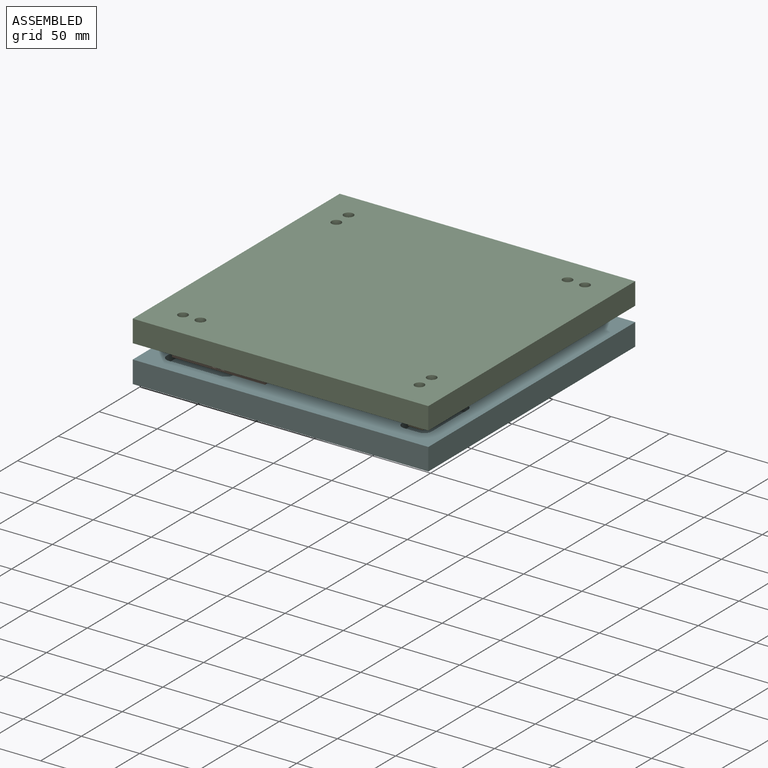
[diagram: assembled view]
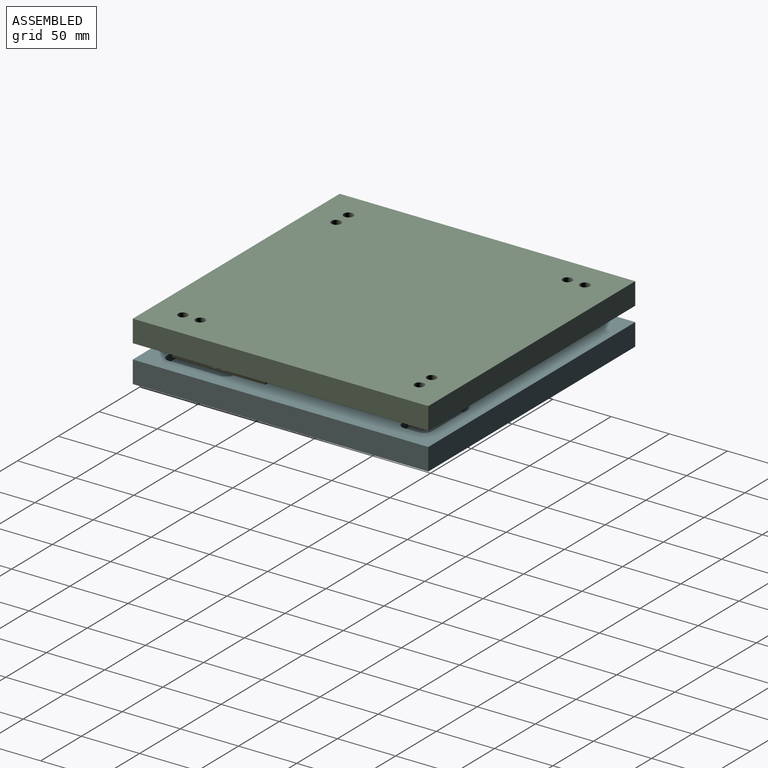
[diagram: assembled view, second angle]
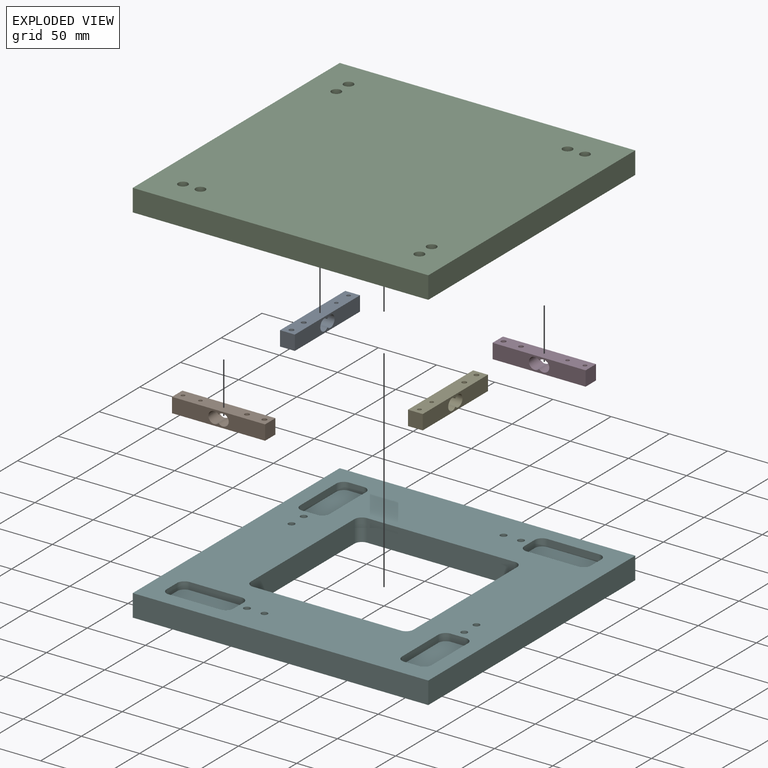
[diagram: exploded view]
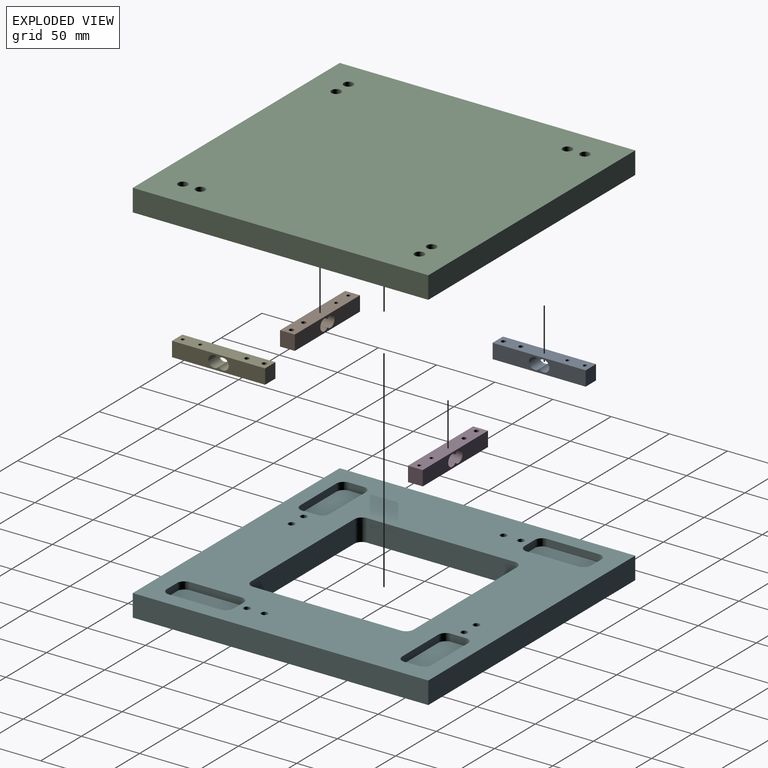
[diagram: exploded view, second angle]
ASSEMBLY  parts=6 mates=5
PART A: 12 faces, bbox 80x12.7x12.7 mm
  f0: plane 80x12.7mm, normal (0,-1,0), area 870.3mm2, adj f1,f2,f4,f5,f6,f11
  f1: cylinder r=5mm len=12.7mm, axis (0,-1,0), area 307.2mm2, adj f0,f3,f11
  f2: plane 12.7x12.7mm, normal (1,0,0), area 161.3mm2, adj f0,f3,f5,f6
  f3: plane 80x12.7mm, normal (0,1,0), area 870.3mm2, adj f1,f2,f4,f5,f6,f11
  f4: plane 12.7x12.7mm, normal (-1,0,0), area 161.3mm2, adj f0,f3,f5,f6
  f5: plane 80x12.7mm, normal (0,0,1), area 973.5mm2, adj f0,f2,f3,f4,f7,f8,f9,f10
  f6: plane 80x12.7mm, normal (0,0,-1), area 973.5mm2, adj f0,f2,f3,f4,f7,f8,f9,f10
  f7: cylinder r=1.6mm len=12.7mm, axis (0,0,1), area 127.7mm2, adj f5,f6
  f8: cylinder r=1.6mm len=12.7mm, axis (0,0,1), area 127.7mm2, adj f5,f6
  f9: cylinder r=2.05mm len=12.7mm, axis (0,0,1), area 163.6mm2, adj f5,f6
  f10: cylinder r=2.05mm len=12.7mm, axis (0,0,1), area 163.6mm2, adj f5,f6
  f11: cylinder r=5mm len=12.7mm, axis (0,-1,0), area 307.2mm2, adj f0,f1,f3
PART B: same geometry as A
PART C: 66 faces, bbox 254x254x19.1 mm
  f0: plane 254x254mm, normal (0,0,-1), area 58726.4mm2, adj f1,f2,f3,f4,f6,f9,f12,f13
  f1: plane 254x19.05mm, normal (-1,0,0), area 4838.7mm2, adj f0,f2,f4,f5
  f2: plane 254x19.05mm, normal (0,-1,0), area 4838.7mm2, adj f0,f1,f3,f5
  f3: plane 254x19.05mm, normal (1,0,0), area 4838.7mm2, adj f0,f2,f4,f5
  f4: plane 254x19.05mm, normal (0,1,0), area 4838.7mm2, adj f0,f1,f3,f5
  f5: plane 254x254mm, normal (0,0,1), area 64088.4mm2, adj f1,f2,f3,f4,f8,f11,f23,f26
  f6: cylinder r=2.2mm len=15.05mm, axis (0,0,1), area 208mm2, adj f0,f7
  f7: plane 8.25x8.25mm, normal (0,0,1), area 38.3mm2, adj f6,f8
  f8: cylinder r=4.12mm len=8.25mm, axis (0,0,1), area 103.7mm2, adj f5,f7
  f9: cylinder r=2.2mm len=15.05mm, axis (0,0,1), area 208mm2, adj f0,f10
  f10: plane 8.25x8.25mm, normal (0,0,1), area 38.3mm2, adj f9,f11
  f11: cylinder r=4.12mm len=8.25mm, axis (0,0,1), area 103.7mm2, adj f5,f10
  f12: plane 44.45x6.35mm, normal (0,1,0), area 282.3mm2, adj f0,f13,f19,f20
  f13: cylinder r=6.35mm len=6.35mm, axis (0,0,-1), area 63.3mm2, adj f0,f12,f14,f20
  f14: plane 12.7x6.35mm, normal (1,0,0), area 80.6mm2, adj f0,f13,f15,f20
  f15: cylinder r=6.35mm len=6.35mm, axis (0,0,-1), area 63.3mm2, adj f0,f14,f16,f20
  f16: plane 44.45x6.35mm, normal (0,-1,0), area 282.3mm2, adj f0,f15,f17,f20
  f17: cylinder r=6.35mm len=6.35mm, axis (0,0,-1), area 63.3mm2, adj f0,f16,f18,f20
  f18: plane 12.7x6.35mm, normal (-1,0,0), area 80.6mm2, adj f0,f17,f19,f20
  f19: cylinder r=6.35mm len=6.35mm, axis (0,0,-1), area 63.3mm2, adj f0,f12,f18,f20
  f20: plane 57.15x25.4mm, normal (0,0,-1), area 1417mm2, adj f12,f13,f14,f15,f16,f17,f18,f19
  f21: cylinder r=2.2mm len=15.05mm, axis (0,0,1), area 208mm2, adj f0,f22
  f22: plane 8.25x8.25mm, normal (0,0,1), area 38.3mm2, adj f21,f23
  f23: cylinder r=4.12mm len=8.25mm, axis (0,0,1), area 103.7mm2, adj f5,f22
  f24: cylinder r=2.2mm len=15.05mm, axis (0,0,1), area 208mm2, adj f0,f25
  f25: plane 8.25x8.25mm, normal (0,0,1), area 38.3mm2, adj f24,f26
  f26: cylinder r=4.12mm len=8.25mm, axis (0,0,1), area 103.7mm2, adj f5,f25
  f27: plane 44.45x6.35mm, normal (1,0,0), area 282.3mm2, adj f0,f28,f34,f35
  f28: cylinder r=6.35mm len=6.35mm, axis (0,0,-1), area 63.3mm2, adj f0,f27,f29,f35
  f29: plane 12.7x6.35mm, normal (0,-1,0), area 80.6mm2, adj f0,f28,f30,f35
  f30: cylinder r=6.35mm len=6.35mm, axis (0,0,-1), area 63.3mm2, adj f0,f29,f31,f35
  f31: plane 44.45x6.35mm, normal (-1,0,0), area 282.3mm2, adj f0,f30,f32,f35
  f32: cylinder r=6.35mm len=6.35mm, axis (0,0,-1), area 63.3mm2, adj f0,f31,f33,f35
  f33: plane 12.7x6.35mm, normal (0,1,0), area 80.6mm2, adj f0,f32,f34,f35
  f34: cylinder r=6.35mm len=6.35mm, axis (0,0,-1), area 63.3mm2, adj f0,f27,f33,f35
  f35: plane 57.15x25.4mm, normal (0,0,-1), area 1417mm2, adj f27,f28,f29,f30,f31,f32,f33,f34
  f36: cylinder r=2.2mm len=15.05mm, axis (0,0,1), area 208mm2, adj f0,f37
  f37: plane 8.25x8.25mm, normal (0,0,1), area 38.3mm2, adj f36,f38
  f38: cylinder r=4.12mm len=8.25mm, axis (0,0,1), area 103.7mm2, adj f5,f37
  f39: cylinder r=2.2mm len=15.05mm, axis (0,0,1), area 208mm2, adj f0,f40
  f40: plane 8.25x8.25mm, normal (0,0,1), area 38.3mm2, adj f39,f41
  f41: cylinder r=4.12mm len=8.25mm, axis (0,0,1), area 103.7mm2, adj f5,f40
  f42: plane 44.45x6.35mm, normal (0,-1,0), area 282.3mm2, adj f0,f43,f49,f50
  f43: cylinder r=6.35mm len=6.35mm, axis (0,0,-1), area 63.3mm2, adj f0,f42,f44,f50
  f44: plane 12.7x6.35mm, normal (-1,0,0), area 80.6mm2, adj f0,f43,f45,f50
  f45: cylinder r=6.35mm len=6.35mm, axis (0,0,-1), area 63.3mm2, adj f0,f44,f46,f50
  f46: plane 44.45x6.35mm, normal (0,1,0), area 282.3mm2, adj f0,f45,f47,f50
  f47: cylinder r=6.35mm len=6.35mm, axis (0,0,-1), area 63.3mm2, adj f0,f46,f48,f50
  f48: plane 12.7x6.35mm, normal (1,0,0), area 80.6mm2, adj f0,f47,f49,f50
  f49: cylinder r=6.35mm len=6.35mm, axis (0,0,-1), area 63.3mm2, adj f0,f42,f48,f50
  f50: plane 57.15x25.4mm, normal (0,0,-1), area 1417mm2, adj f42,f43,f44,f45,f46,f47,f48,f49
  f51: cylinder r=2.2mm len=15.05mm, axis (0,0,1), area 208mm2, adj f0,f52
  f52: plane 8.25x8.25mm, normal (0,0,1), area 38.3mm2, adj f51,f53
  f53: cylinder r=4.12mm len=8.25mm, axis (0,0,1), area 103.7mm2, adj f5,f52
  f54: cylinder r=2.2mm len=15.05mm, axis (0,0,1), area 208mm2, adj f0,f55
  f55: plane 8.25x8.25mm, normal (0,0,1), area 38.3mm2, adj f54,f56
  f56: cylinder r=4.12mm len=8.25mm, axis (0,0,1), area 103.7mm2, adj f5,f55
  f57: plane 44.45x6.35mm, normal (-1,0,0), area 282.3mm2, adj f0,f58,f64,f65
  f58: cylinder r=6.35mm len=6.35mm, axis (0,0,-1), area 63.3mm2, adj f0,f57,f59,f65
  f59: plane 12.7x6.35mm, normal (0,1,0), area 80.6mm2, adj f0,f58,f60,f65
  f60: cylinder r=6.35mm len=6.35mm, axis (0,0,-1), area 63.3mm2, adj f0,f59,f61,f65
  f61: plane 44.45x6.35mm, normal (1,0,0), area 282.3mm2, adj f0,f60,f62,f65
  f62: cylinder r=6.35mm len=6.35mm, axis (0,0,-1), area 63.3mm2, adj f0,f61,f63,f65
  f63: plane 12.7x6.35mm, normal (0,-1,0), area 80.6mm2, adj f0,f62,f64,f65
  f64: cylinder r=6.35mm len=6.35mm, axis (0,0,-1), area 63.3mm2, adj f0,f57,f63,f65
  f65: plane 57.15x25.4mm, normal (0,0,-1), area 1417mm2, adj f57,f58,f59,f60,f61,f62,f63,f64
PART D: same geometry as A
PART E: same geometry as A
PART F: 74 faces, bbox 254x254x19.1 mm
  f0: plane 254x254mm, normal (0,0,-1), area 39176.5mm2, adj f2,f3,f4,f5,f6,f9,f12,f13
  f1: plane 254x254mm, normal (0,0,1), area 44437.2mm2, adj f2,f3,f4,f5,f8,f11,f23,f26
  f2: plane 254x19.05mm, normal (-1,0,0), area 4838.7mm2, adj f0,f1,f3,f5
  f3: plane 254x19.05mm, normal (0,-1,0), area 4838.7mm2, adj f0,f1,f2,f4
  f4: plane 254x19.05mm, normal (1,0,0), area 4838.7mm2, adj f0,f1,f3,f5
  f5: plane 254x19.05mm, normal (0,1,0), area 4838.7mm2, adj f0,f1,f2,f4
  f6: cylinder r=2.75mm len=14.05mm, axis (0,0,1), area 242.8mm2, adj f0,f7
  f7: plane 9.75x9.75mm, normal (0,0,1), area 50.9mm2, adj f6,f8
  f8: cylinder r=4.88mm len=9.75mm, axis (0,0,1), area 153.2mm2, adj f1,f7
  f9: cylinder r=2.75mm len=14.05mm, axis (0,0,1), area 242.8mm2, adj f0,f10
  f10: plane 9.75x9.75mm, normal (0,0,1), area 50.9mm2, adj f9,f11
  f11: cylinder r=4.88mm len=9.75mm, axis (0,0,1), area 153.2mm2, adj f1,f10
  f12: plane 44.45x6.35mm, normal (0,1,0), area 282.3mm2, adj f0,f13,f19,f20
  f13: cylinder r=6.35mm len=6.35mm, axis (0,0,-1), area 63.3mm2, adj f0,f12,f14,f20
  f14: plane 12.7x6.35mm, normal (1,0,0), area 80.6mm2, adj f0,f13,f15,f20
  f15: cylinder r=6.35mm len=6.35mm, axis (0,0,-1), area 63.3mm2, adj f0,f14,f16,f20
  f16: plane 44.45x6.35mm, normal (0,-1,0), area 282.3mm2, adj f0,f15,f17,f20
  f17: cylinder r=6.35mm len=6.35mm, axis (0,0,-1), area 63.3mm2, adj f0,f16,f18,f20
  f18: plane 12.7x6.35mm, normal (-1,0,0), area 80.6mm2, adj f0,f17,f19,f20
  f19: cylinder r=6.35mm len=6.35mm, axis (0,0,-1), area 63.3mm2, adj f0,f12,f18,f20
  f20: plane 57.15x25.4mm, normal (0,0,-1), area 1417mm2, adj f12,f13,f14,f15,f16,f17,f18,f19
  f21: cylinder r=2.75mm len=14.05mm, axis (0,0,1), area 242.8mm2, adj f0,f22
  f22: plane 9.75x9.75mm, normal (0,0,1), area 50.9mm2, adj f21,f23
  f23: cylinder r=4.88mm len=9.75mm, axis (0,0,1), area 153.2mm2, adj f1,f22
  f24: cylinder r=2.75mm len=14.05mm, axis (0,0,1), area 242.8mm2, adj f0,f25
  f25: plane 9.75x9.75mm, normal (0,0,1), area 50.9mm2, adj f24,f26
  f26: cylinder r=4.88mm len=9.75mm, axis (0,0,1), area 153.2mm2, adj f1,f25
  f27: plane 44.45x6.35mm, normal (-1,0,0), area 282.3mm2, adj f0,f28,f34,f35
  f28: cylinder r=6.35mm len=6.35mm, axis (0,0,-1), area 63.3mm2, adj f0,f27,f29,f35
  f29: plane 12.7x6.35mm, normal (0,1,0), area 80.6mm2, adj f0,f28,f30,f35
  f30: cylinder r=6.35mm len=6.35mm, axis (0,0,-1), area 63.3mm2, adj f0,f29,f31,f35
  f31: plane 44.45x6.35mm, normal (1,0,0), area 282.3mm2, adj f0,f30,f32,f35
  f32: cylinder r=6.35mm len=6.35mm, axis (0,0,-1), area 63.3mm2, adj f0,f31,f33,f35
  f33: plane 12.7x6.35mm, normal (0,-1,0), area 80.6mm2, adj f0,f32,f34,f35
  f34: cylinder r=6.35mm len=6.35mm, axis (0,0,-1), area 63.3mm2, adj f0,f27,f33,f35
  f35: plane 57.15x25.4mm, normal (0,0,-1), area 1417mm2, adj f27,f28,f29,f30,f31,f32,f33,f34
  f36: cylinder r=2.75mm len=14.05mm, axis (0,0,1), area 242.8mm2, adj f0,f37
  f37: plane 9.75x9.75mm, normal (0,0,1), area 50.9mm2, adj f36,f38
  f38: cylinder r=4.88mm len=9.75mm, axis (0,0,1), area 153.2mm2, adj f1,f37
  f39: cylinder r=2.75mm len=14.05mm, axis (0,0,1), area 242.8mm2, adj f0,f40
  f40: plane 9.75x9.75mm, normal (0,0,1), area 50.9mm2, adj f39,f41
  f41: cylinder r=4.88mm len=9.75mm, axis (0,0,1), area 153.2mm2, adj f1,f40
  f42: plane 44.45x6.35mm, normal (0,-1,0), area 282.3mm2, adj f0,f43,f49,f50
  f43: cylinder r=6.35mm len=6.35mm, axis (0,0,-1), area 63.3mm2, adj f0,f42,f44,f50
  f44: plane 12.7x6.35mm, normal (-1,0,0), area 80.6mm2, adj f0,f43,f45,f50
  f45: cylinder r=6.35mm len=6.35mm, axis (0,0,-1), area 63.3mm2, adj f0,f44,f46,f50
  f46: plane 44.45x6.35mm, normal (0,1,0), area 282.3mm2, adj f0,f45,f47,f50
  f47: cylinder r=6.35mm len=6.35mm, axis (0,0,-1), area 63.3mm2, adj f0,f46,f48,f50
  f48: plane 12.7x6.35mm, normal (1,0,0), area 80.6mm2, adj f0,f47,f49,f50
  f49: cylinder r=6.35mm len=6.35mm, axis (0,0,-1), area 63.3mm2, adj f0,f42,f48,f50
  f50: plane 57.15x25.4mm, normal (0,0,-1), area 1417mm2, adj f42,f43,f44,f45,f46,f47,f48,f49
  f51: cylinder r=2.75mm len=14.05mm, axis (0,0,1), area 242.8mm2, adj f0,f52
  f52: plane 9.75x9.75mm, normal (0,0,1), area 50.9mm2, adj f51,f53
  f53: cylinder r=4.88mm len=9.75mm, axis (0,0,1), area 153.2mm2, adj f1,f52
  f54: cylinder r=2.75mm len=14.05mm, axis (0,0,1), area 242.8mm2, adj f0,f55
  f55: plane 9.75x9.75mm, normal (0,0,1), area 50.9mm2, adj f54,f56
  f56: cylinder r=4.88mm len=9.75mm, axis (0,0,1), area 153.2mm2, adj f1,f55
  f57: plane 44.45x6.35mm, normal (1,0,0), area 282.3mm2, adj f0,f58,f64,f65
  f58: cylinder r=6.35mm len=6.35mm, axis (0,0,-1), area 63.3mm2, adj f0,f57,f59,f65
  f59: plane 12.7x6.35mm, normal (0,-1,0), area 80.6mm2, adj f0,f58,f60,f65
  f60: cylinder r=6.35mm len=6.35mm, axis (0,0,-1), area 63.3mm2, adj f0,f59,f61,f65
  f61: plane 44.45x6.35mm, normal (-1,0,0), area 282.3mm2, adj f0,f60,f62,f65
  f62: cylinder r=6.35mm len=6.35mm, axis (0,0,-1), area 63.3mm2, adj f0,f61,f63,f65
  f63: plane 12.7x6.35mm, normal (0,1,0), area 80.6mm2, adj f0,f62,f64,f65
  f64: cylinder r=6.35mm len=6.35mm, axis (0,0,-1), area 63.3mm2, adj f0,f57,f63,f65
  f65: plane 57.15x25.4mm, normal (0,0,-1), area 1417mm2, adj f57,f58,f59,f60,f61,f62,f63,f64
  f66: plane 127x19.05mm, normal (0,1,0), area 2419.4mm2, adj f0,f1,f67,f73
  f67: cylinder r=6.35mm len=19.05mm, axis (0,0,-1), area 190mm2, adj f0,f1,f66,f68
  f68: plane 127x19.05mm, normal (1,0,0), area 2419.4mm2, adj f0,f1,f67,f69
  f69: cylinder r=6.35mm len=19.05mm, axis (0,0,-1), area 190mm2, adj f0,f1,f68,f70
  f70: plane 127x19.05mm, normal (0,-1,0), area 2419.4mm2, adj f0,f1,f69,f71
  f71: cylinder r=6.35mm len=19.05mm, axis (0,0,-1), area 190mm2, adj f0,f1,f70,f72
  f72: plane 127x19.05mm, normal (-1,0,0), area 2419.4mm2, adj f0,f1,f71,f73
  f73: cylinder r=6.35mm len=19.05mm, axis (0,0,-1), area 190mm2, adj f0,f1,f66,f72
PLACE A rot(axis=(0,0,-1),90deg) t=(-101.6,66.6,-12.7)mm
PLACE B t=(-66.6,-101.6,-12.7)mm
PLACE C rot(axis=(0,0,1),90deg) t=(101.6,-66.6,19.05)mm
PLACE D rot(axis=(0,0,1),180deg) t=(66.6,101.6,-12.7)mm
PLACE E rot(axis=(0,0,1),90deg) t=(101.6,-66.6,-12.7)mm
PLACE F rot(axis=(-0.71,0.71,0),180deg) t=(-101.6,66.6,-31.75)mm
MATE fastened A.f7 <-> C.f36  axis (0,0,1) through (-101.6,101.6,0)mm
MATE fastened C.f21 <-> B.f7  axis (0,0,-1) through (-101.6,-101.6,0)mm
MATE fastened C.f51 <-> D.f7  axis (0,0,-1) through (101.6,101.6,0)mm
MATE fastened E.f7 <-> C.f6  axis (0,0,1) through (101.6,-101.6,0)mm
MATE fastened A.f10 <-> F.f9  axis (0,0,-1) through (-101.6,31.6,-12.7)mm
